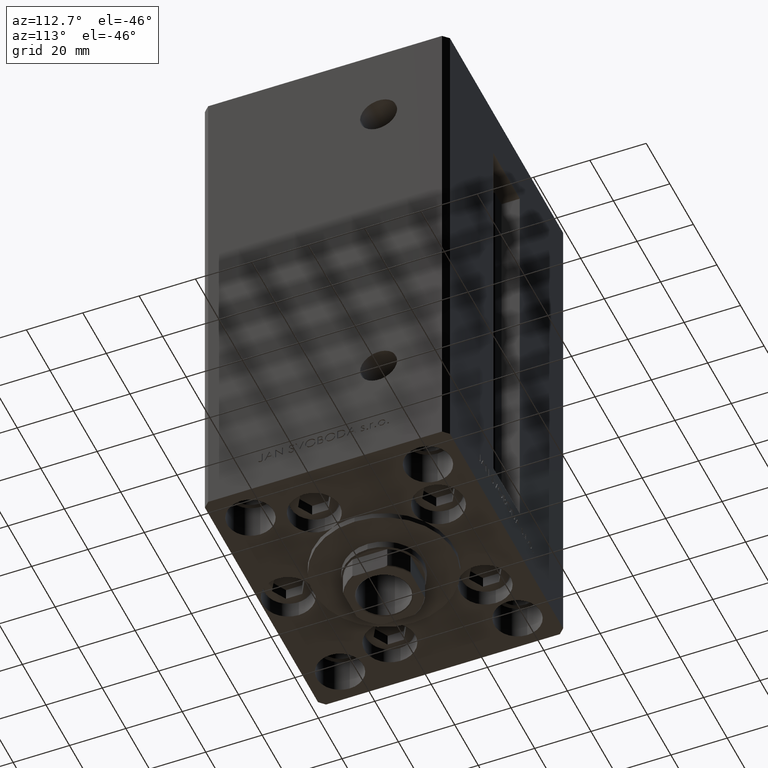
[diagram: clean part render]
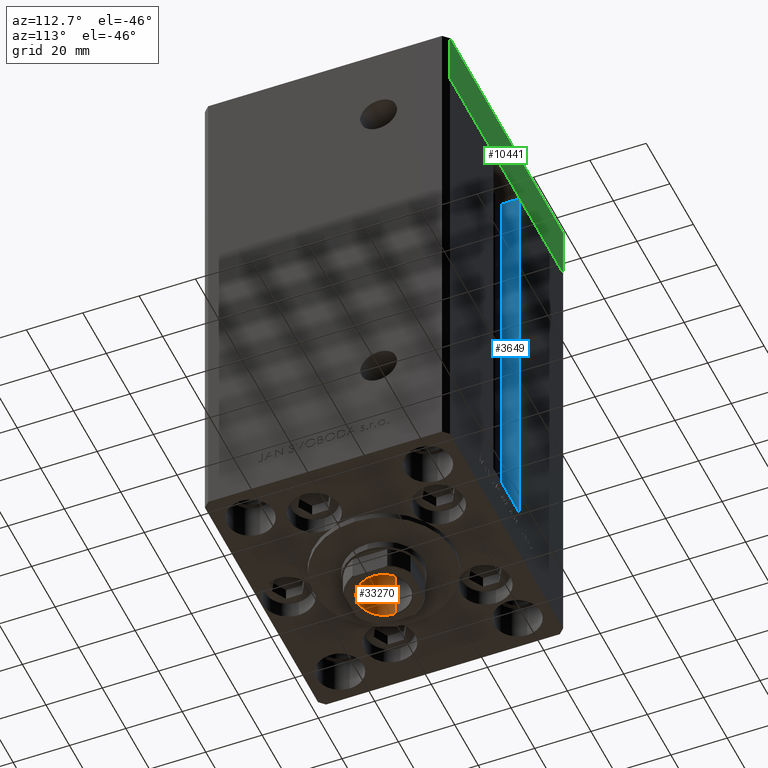
[diagram: same view with three faces highlighted in distinct colors, each labeled with its STEP entity id]
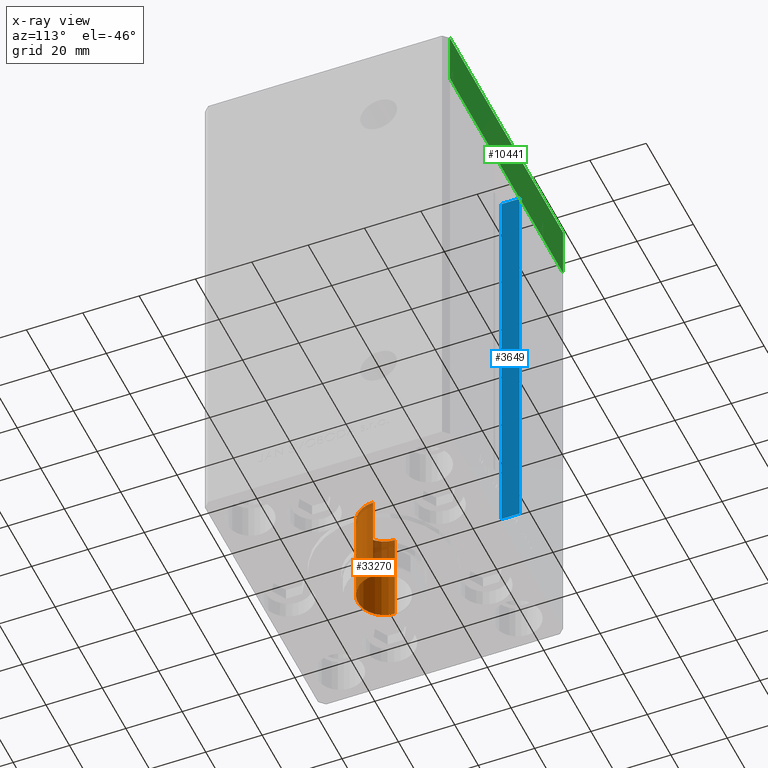
[diagram: x-ray of the same camera — body ghosted, the three highlighted faces saturated]
A machine part, auxiliary view with three faces highlighted in distinct colors.
The next image is the same camera in x-ray (body ghosted, the three faces saturated) — at least one of them is partly hidden behind the body in this view.
Their STEP definitions:

[orange] entity #33270 — the highlighted cylindrical surface (edge-blend (fillet) strip) has radius 9.25 mm, axis along (0, 0, -1).
#817 = CARTESIAN_POINT ( 'NONE',  ( 9.249999999999996447, 0.000000000000000000, 164.9499999999999886 ) ) ;
#960 = AXIS2_PLACEMENT_3D ( 'NONE', #37987, #45266, #7631 ) ;
#4565 = CARTESIAN_POINT ( 'NONE',  ( -9.249999999999994671, 1.132798289211300909E-15, 130.2500000000000000 ) ) ;
#7631 = DIRECTION ( 'NONE',  ( 1.000000000000000000, 0.000000000000000000, 0.000000000000000000 ) ) ;
#8702 = EDGE_CURVE ( 'NONE', #16629, #41904, #48361, .T. ) ;
#11516 = AXIS2_PLACEMENT_3D ( 'NONE', #14969, #41058, #30291 ) ;
#12711 = CARTESIAN_POINT ( 'NONE',  ( 9.249999999999996447, 0.000000000000000000, 165.2500000000000000 ) ) ;
#14567 = DIRECTION ( 'NONE',  ( 0.000000000000000000, 0.000000000000000000, 1.000000000000000000 ) ) ;
#14969 = CARTESIAN_POINT ( 'NONE',  ( 0.000000000000000000, 0.000000000000000000, 130.2500000000000000 ) ) ;
#16199 = EDGE_LOOP ( 'NONE', ( #32772, #18029, #42587, #36374 ) ) ;
#16629 = VERTEX_POINT ( 'NONE', #4565 ) ;
#18029 = ORIENTED_EDGE ( 'NONE', *, *, #38417, .T. ) ;
#18647 = VECTOR ( 'NONE', #26405, 1000.000000000000000 ) ;
#18822 = AXIS2_PLACEMENT_3D ( 'NONE', #48928, #14567, #30617 ) ;
#22885 = CARTESIAN_POINT ( 'NONE',  ( -9.249999999999996447, 1.132798289211301304E-15, 165.2500000000000000 ) ) ;
#26405 = DIRECTION ( 'NONE',  ( -0.000000000000000000, -0.000000000000000000, 1.000000000000000000 ) ) ;
#26406 = VERTEX_POINT ( 'NONE', #47499 ) ;
#27652 = CIRCLE ( 'NONE', #18822, 9.249999999999996447 ) ;
#28772 = DIRECTION ( 'NONE',  ( -0.000000000000000000, -0.000000000000000000, 1.000000000000000000 ) ) ;
#29979 = FACE_OUTER_BOUND ( 'NONE', #16199, .T. ) ;
#30291 = DIRECTION ( 'NONE',  ( 1.000000000000000000, 0.000000000000000000, 0.000000000000000000 ) ) ;
#30475 = CYLINDRICAL_SURFACE ( 'NONE', #960, 9.249999999999996447 ) ;
#30617 = DIRECTION ( 'NONE',  ( 1.000000000000000000, 0.000000000000000000, 0.000000000000000000 ) ) ;
#31786 = LINE ( 'NONE', #12711, #32257 ) ;
#32257 = VECTOR ( 'NONE', #28772, 1000.000000000000000 ) ;
#32523 = CARTESIAN_POINT ( 'NONE',  ( 9.249999999999994671, 0.000000000000000000, 130.2500000000000000 ) ) ;
#32772 = ORIENTED_EDGE ( 'NONE', *, *, #8702, .F. ) ;
#33270 = ADVANCED_FACE ( 'NONE', ( #29979 ), #30475, .F. ) ;
#35310 = EDGE_CURVE ( 'NONE', #41904, #43795, #31786, .T. ) ;
#36374 = ORIENTED_EDGE ( 'NONE', *, *, #35310, .F. ) ;
#37987 = CARTESIAN_POINT ( 'NONE',  ( 0.000000000000000000, 0.000000000000000000, 165.2500000000000000 ) ) ;
#38417 = EDGE_CURVE ( 'NONE', #16629, #26406, #38647, .T. ) ;
#38647 = LINE ( 'NONE', #22885, #18647 ) ;
#41058 = DIRECTION ( 'NONE',  ( -0.000000000000000000, -0.000000000000000000, 1.000000000000000000 ) ) ;
#41904 = VERTEX_POINT ( 'NONE', #32523 ) ;
#42587 = ORIENTED_EDGE ( 'NONE', *, *, #44260, .T. ) ;
#43795 = VERTEX_POINT ( 'NONE', #817 ) ;
#44260 = EDGE_CURVE ( 'NONE', #26406, #43795, #27652, .T. ) ;
#45266 = DIRECTION ( 'NONE',  ( -0.000000000000000000, -0.000000000000000000, 1.000000000000000000 ) ) ;
#47499 = CARTESIAN_POINT ( 'NONE',  ( -9.249999999999996447, 1.132798289211301304E-15, 164.9499999999999886 ) ) ;
#48361 = CIRCLE ( 'NONE', #11516, 9.249999999999994671 ) ;
#48928 = CARTESIAN_POINT ( 'NONE',  ( 0.000000000000000000, 0.000000000000000000, 164.9499999999999886 ) ) ;

[blue] entity #3649 — the highlighted planar face has unit normal (-1, 0, 0).
#2254 = DIRECTION ( 'NONE',  ( -0.000000000000000000, -0.000000000000000000, 1.000000000000000000 ) ) ;
#2679 = VERTEX_POINT ( 'NONE', #24625 ) ;
#3649 = ADVANCED_FACE ( 'NONE', ( #13565 ), #5553, .F. ) ;
#5399 = VERTEX_POINT ( 'NONE', #25443 ) ;
#5553 = PLANE ( 'NONE',  #10372 ) ;
#5790 = DIRECTION ( 'NONE',  ( -1.000000000000000000, 0.000000000000000000, 0.000000000000000000 ) ) ;
#7754 = CARTESIAN_POINT ( 'NONE',  ( -11.24999999999999822, 36.99999999999999289, 0.000000000000000000 ) ) ;
#8698 = DIRECTION ( 'NONE',  ( 0.000000000000000000, 1.000000000000000000, 0.000000000000000000 ) ) ;
#9605 = ORIENTED_EDGE ( 'NONE', *, *, #19226, .T. ) ;
#10092 = ORIENTED_EDGE ( 'NONE', *, *, #10607, .F. ) ;
#10372 = AXIS2_PLACEMENT_3D ( 'NONE', #43425, #5790, #28882 ) ;
#10607 = EDGE_CURVE ( 'NONE', #29296, #34675, #31028, .T. ) ;
#10656 = CARTESIAN_POINT ( 'NONE',  ( -11.24999999999999822, 43.50000000000000000, 0.000000000000000000 ) ) ;
#13565 = FACE_OUTER_BOUND ( 'NONE', #18818, .T. ) ;
#14428 = LINE ( 'NONE', #10656, #23065 ) ;
#15367 = VECTOR ( 'NONE', #21905, 1000.000000000000000 ) ;
#15854 = CARTESIAN_POINT ( 'NONE',  ( -11.24999999999999822, 43.50000000000000000, 148.5000000000000000 ) ) ;
#17052 = CARTESIAN_POINT ( 'NONE',  ( -11.24999999999999822, 36.99999999999999289, 0.000000000000000000 ) ) ;
#18818 = EDGE_LOOP ( 'NONE', ( #49269, #22103, #9605, #10092 ) ) ;
#19226 = EDGE_CURVE ( 'NONE', #5399, #34675, #14428, .T. ) ;
#21905 = DIRECTION ( 'NONE',  ( -0.000000000000000000, -1.000000000000000000, -0.000000000000000000 ) ) ;
#21980 = DIRECTION ( 'NONE',  ( -0.000000000000000000, -0.000000000000000000, 1.000000000000000000 ) ) ;
#22103 = ORIENTED_EDGE ( 'NONE', *, *, #32817, .F. ) ;
#22154 = LINE ( 'NONE', #7754, #15367 ) ;
#23065 = VECTOR ( 'NONE', #21980, 1000.000000000000000 ) ;
#23565 = VECTOR ( 'NONE', #8698, 1000.000000000000000 ) ;
#24279 = EDGE_CURVE ( 'NONE', #2679, #29296, #32362, .T. ) ;
#24625 = CARTESIAN_POINT ( 'NONE',  ( -11.24999999999999822, 36.99999999999999289, 0.000000000000000000 ) ) ;
#25443 = CARTESIAN_POINT ( 'NONE',  ( -11.24999999999999822, 43.50000000000000000, 0.000000000000000000 ) ) ;
#28882 = DIRECTION ( 'NONE',  ( 0.000000000000000000, 0.000000000000000000, 1.000000000000000000 ) ) ;
#29296 = VERTEX_POINT ( 'NONE', #37682 ) ;
#31028 = LINE ( 'NONE', #46312, #23565 ) ;
#32362 = LINE ( 'NONE', #17052, #44739 ) ;
#32817 = EDGE_CURVE ( 'NONE', #5399, #2679, #22154, .T. ) ;
#34675 = VERTEX_POINT ( 'NONE', #15854 ) ;
#37682 = CARTESIAN_POINT ( 'NONE',  ( -11.24999999999999822, 36.99999999999999289, 148.5000000000000000 ) ) ;
#43425 = CARTESIAN_POINT ( 'NONE',  ( -11.24999999999999822, 36.99999999999999289, 0.000000000000000000 ) ) ;
#44739 = VECTOR ( 'NONE', #2254, 1000.000000000000000 ) ;
#46312 = CARTESIAN_POINT ( 'NONE',  ( -11.24999999999999822, 0.000000000000000000, 148.5000000000000000 ) ) ;
#49269 = ORIENTED_EDGE ( 'NONE', *, *, #24279, .F. ) ;

[green] entity #10441 — the highlighted planar face has unit normal (-0, 1, 0).
#178 = DIRECTION ( 'NONE',  ( -1.000000000000000000, -3.614007241618350743E-16, 0.000000000000000000 ) ) ;
#1970 = VECTOR ( 'NONE', #34865, 1000.000000000000000 ) ;
#3413 = VERTEX_POINT ( 'NONE', #12702 ) ;
#3941 = CARTESIAN_POINT ( 'NONE',  ( 47.99999999999990763, 43.50000000000000000, -19.00000000000000000 ) ) ;
#5115 = LINE ( 'NONE', #31459, #31762 ) ;
#7953 = FACE_OUTER_BOUND ( 'NONE', #39248, .T. ) ;
#10441 = ADVANCED_FACE ( 'NONE', ( #7953 ), #49355, .T. ) ;
#11402 = EDGE_CURVE ( 'NONE', #3413, #37533, #19839, .T. ) ;
#12544 = CARTESIAN_POINT ( 'NONE',  ( 47.99999999999990763, 43.50000000000000000, -19.00000000000000000 ) ) ;
#12702 = CARTESIAN_POINT ( 'NONE',  ( 47.99999999999990763, 43.50000000000000000, -19.00000000000000000 ) ) ;
#14842 = CARTESIAN_POINT ( 'NONE',  ( 47.99999999999990763, 43.50000000000000000, 0.000000000000000000 ) ) ;
#15836 = EDGE_CURVE ( 'NONE', #37533, #17765, #18355, .T. ) ;
#16059 = EDGE_CURVE ( 'NONE', #3413, #35012, #5115, .T. ) ;
#17015 = CARTESIAN_POINT ( 'NONE',  ( -48.00000000000000711, 43.49999999999996447, -19.00000000000000000 ) ) ;
#17765 = VERTEX_POINT ( 'NONE', #46318 ) ;
#18355 = LINE ( 'NONE', #14842, #36543 ) ;
#19839 = LINE ( 'NONE', #12544, #1970 ) ;
#19927 = DIRECTION ( 'NONE',  ( -1.000000000000000000, -3.614007241618350743E-16, 0.000000000000000000 ) ) ;
#23808 = CARTESIAN_POINT ( 'NONE',  ( 47.99999999999990763, 43.50000000000000000, 0.000000000000000000 ) ) ;
#27036 = DIRECTION ( 'NONE',  ( -3.614007241618350743E-16, 1.000000000000000000, 0.000000000000000000 ) ) ;
#28406 = AXIS2_PLACEMENT_3D ( 'NONE', #3941, #27036, #178 ) ;
#29079 = ORIENTED_EDGE ( 'NONE', *, *, #16059, .T. ) ;
#31155 = LINE ( 'NONE', #17015, #35507 ) ;
#31459 = CARTESIAN_POINT ( 'NONE',  ( 47.99999999999990763, 43.50000000000000000, -19.00000000000000000 ) ) ;
#31762 = VECTOR ( 'NONE', #19927, 1000.000000000000000 ) ;
#34865 = DIRECTION ( 'NONE',  ( 0.000000000000000000, 0.000000000000000000, 1.000000000000000000 ) ) ;
#35012 = VERTEX_POINT ( 'NONE', #47383 ) ;
#35507 = VECTOR ( 'NONE', #42924, 1000.000000000000000 ) ;
#36543 = VECTOR ( 'NONE', #48952, 1000.000000000000000 ) ;
#37533 = VERTEX_POINT ( 'NONE', #23808 ) ;
#39142 = ORIENTED_EDGE ( 'NONE', *, *, #11402, .F. ) ;
#39248 = EDGE_LOOP ( 'NONE', ( #44960, #39142, #29079, #40206 ) ) ;
#40206 = ORIENTED_EDGE ( 'NONE', *, *, #40515, .T. ) ;
#40515 = EDGE_CURVE ( 'NONE', #35012, #17765, #31155, .T. ) ;
#42924 = DIRECTION ( 'NONE',  ( 0.000000000000000000, 0.000000000000000000, 1.000000000000000000 ) ) ;
#44960 = ORIENTED_EDGE ( 'NONE', *, *, #15836, .F. ) ;
#46318 = CARTESIAN_POINT ( 'NONE',  ( -48.00000000000000711, 43.49999999999996447, 0.000000000000000000 ) ) ;
#47383 = CARTESIAN_POINT ( 'NONE',  ( -48.00000000000000711, 43.49999999999996447, -19.00000000000000000 ) ) ;
#48952 = DIRECTION ( 'NONE',  ( -1.000000000000000000, -3.614007241618350743E-16, 0.000000000000000000 ) ) ;
#49355 = PLANE ( 'NONE',  #28406 ) ;